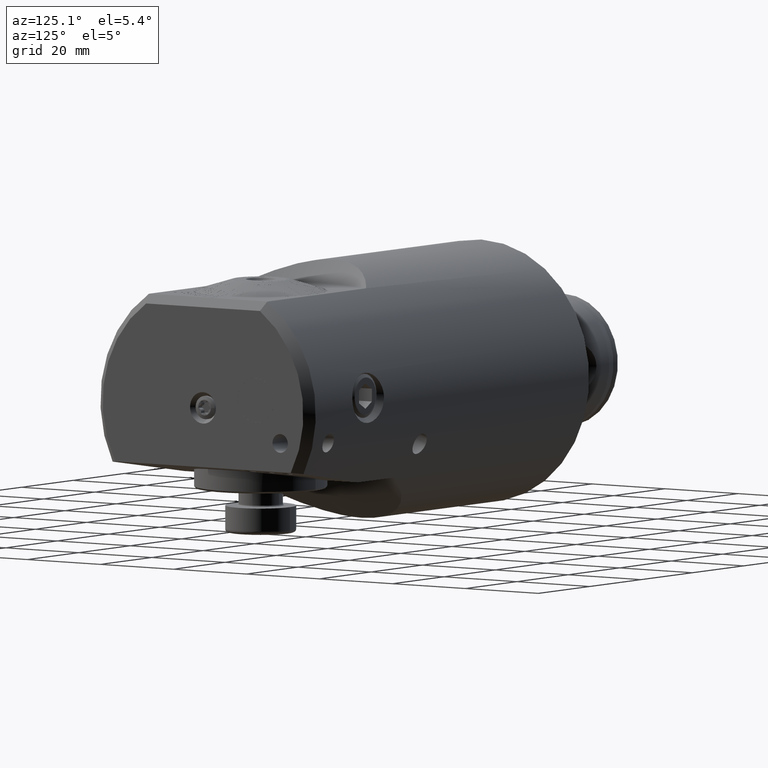
[diagram: clean part render]
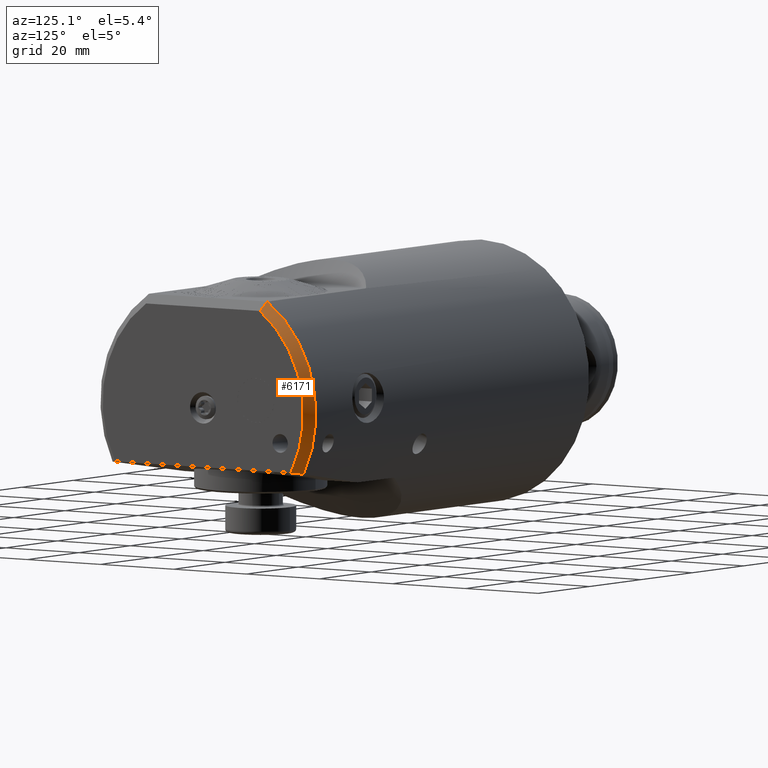
[diagram: same view with one face highlighted and labeled with its STEP entity id]
A machine part, auxiliary view. The second image highlights one B-rep face of the part: STEP entity #6171.
In plain terms, the highlighted conical surface has half-angle 45 deg.
Its self-contained STEP definition (entity closure, byte-faithful):
#752 = CARTESIAN_POINT ( 'NONE',  ( -2.000000000000000400, 16.20578600377028500, 24.65000000000003800 ) ) ;
#956 = CARTESIAN_POINT ( 'NONE',  ( -2.000000000000001800, 0.0000000000000000000, 0.0000000000000000000 ) ) ;
#991 = EDGE_CURVE ( 'NONE', #19476, #19760, #2263, .T. ) ;
#1916 = ORIENTED_EDGE ( 'NONE', *, *, #23677, .T. ) ;
#2157 = EDGE_CURVE ( 'NONE', #26213, #19760, #19166, .T. ) ;
#2263 = B_SPLINE_CURVE_WITH_KNOTS ( 'NONE', 3,
 ( #11481, #9535, #3338, #13502 ),
 .UNSPECIFIED., .F., .F.,
 ( 4, 4 ),
 ( 2.895980831997281800E-007, 0.002893754773417902300 ),
 .UNSPECIFIED. ) ;
#3338 = CARTESIAN_POINT ( 'NONE',  ( -1.332775124844554100, 16.00610172781160400, 23.98277512484459700 ) ) ;
#4787 = ORIENTED_EDGE ( 'NONE', *, *, #991, .F. ) ;
#4876 = CARTESIAN_POINT ( 'NONE',  ( 0.0000000000000000000, 24.04456069534137800, -13.34575216943737400 ) ) ;
#5136 = DIRECTION ( 'NONE',  ( 0.0000000000000000000, 0.0000000000000000000, -1.000000000000000000 ) ) ;
#5948 = EDGE_LOOP ( 'NONE', ( #4787, #20420, #1916, #18550 ) ) ;
#5978 = AXIS2_PLACEMENT_3D ( 'NONE', #13535, #15624, #5136 ) ;
#6171 = ADVANCED_FACE ( 'NONE', ( #25954 ), #12967, .T. ) ;
#6295 = CARTESIAN_POINT ( 'NONE',  ( -2.000000000000000400, 26.14546841339707600, -13.66252105008642200 ) ) ;
#7089 = DIRECTION ( 'NONE',  ( 1.000000000000000000, -0.0000000000000000000, -0.0000000000000000000 ) ) ;
#8580 = DIRECTION ( 'NONE',  ( 0.0000000000000000000, 0.0000000000000000000, 1.000000000000000000 ) ) ;
#9535 = CARTESIAN_POINT ( 'NONE',  ( -0.6660876123197493300, 15.80289395552327000, 23.31608761231979800 ) ) ;
#9796 = CARTESIAN_POINT ( 'NONE',  ( -2.000000000000000400, 26.14546841339707600, -13.66252105008642200 ) ) ;
#10337 = AXIS2_PLACEMENT_3D ( 'NONE', #956, #7089, #19773 ) ;
#10390 = CARTESIAN_POINT ( 'NONE',  ( -1.331713742535154400, 25.44675003038421200, -13.55667490522128200 ) ) ;
#11071 = EDGE_CURVE ( 'NONE', #25243, #19476, #17785, .T. ) ;
#11481 = CARTESIAN_POINT ( 'NONE',  ( 0.0000000000000000000, 15.59575262691722100, 22.65000000000005500 ) ) ;
#12967 = CONICAL_SURFACE ( 'NONE', #21415, 27.49999999999996100, 0.7853981633974526100 ) ;
#13502 = CARTESIAN_POINT ( 'NONE',  ( -2.000000000000000400, 16.20578600377028500, 24.65000000000003800 ) ) ;
#13535 = CARTESIAN_POINT ( 'NONE',  ( 0.0000000000000000000, 0.0000000000000000000, 0.0000000000000000000 ) ) ;
#15002 = DIRECTION ( 'NONE',  ( -1.000000000000000000, 0.0000000000000000000, 0.0000000000000000000 ) ) ;
#15154 = B_SPLINE_CURVE_WITH_KNOTS ( 'NONE', 3,
 ( #4876, #19387, #10390, #6295 ),
 .UNSPECIFIED., .F., .F.,
 ( 4, 4 ),
 ( 2.925601577196677900E-007, 0.002918195191078369900 ),
 .UNSPECIFIED. ) ;
#15624 = DIRECTION ( 'NONE',  ( 1.000000000000000000, -0.0000000000000000000, -0.0000000000000000000 ) ) ;
#15886 = CARTESIAN_POINT ( 'NONE',  ( 0.0000000000000000000, 24.04456069534137800, -13.34575216943737400 ) ) ;
#17785 = CIRCLE ( 'NONE', #5978, 27.49999999999996100 ) ;
#18550 = ORIENTED_EDGE ( 'NONE', *, *, #2157, .T. ) ;
#19166 = CIRCLE ( 'NONE', #10337, 29.49999999999998200 ) ;
#19387 = CARTESIAN_POINT ( 'NONE',  ( -0.6649103338850086400, 24.74657284140423700, -13.45106362053574500 ) ) ;
#19476 = VERTEX_POINT ( 'NONE', #19891 ) ;
#19760 = VERTEX_POINT ( 'NONE', #752 ) ;
#19773 = DIRECTION ( 'NONE',  ( 0.0000000000000000000, 0.0000000000000000000, -1.000000000000000000 ) ) ;
#19891 = CARTESIAN_POINT ( 'NONE',  ( 0.0000000000000000000, 15.59575262691722100, 22.65000000000005500 ) ) ;
#20420 = ORIENTED_EDGE ( 'NONE', *, *, #11071, .F. ) ;
#21415 = AXIS2_PLACEMENT_3D ( 'NONE', #23283, #15002, #8580 ) ;
#23283 = CARTESIAN_POINT ( 'NONE',  ( 0.0000000000000000000, 0.0000000000000000000, 0.0000000000000000000 ) ) ;
#23677 = EDGE_CURVE ( 'NONE', #25243, #26213, #15154, .T. ) ;
#25243 = VERTEX_POINT ( 'NONE', #15886 ) ;
#25954 = FACE_OUTER_BOUND ( 'NONE', #5948, .T. ) ;
#26213 = VERTEX_POINT ( 'NONE', #9796 ) ;